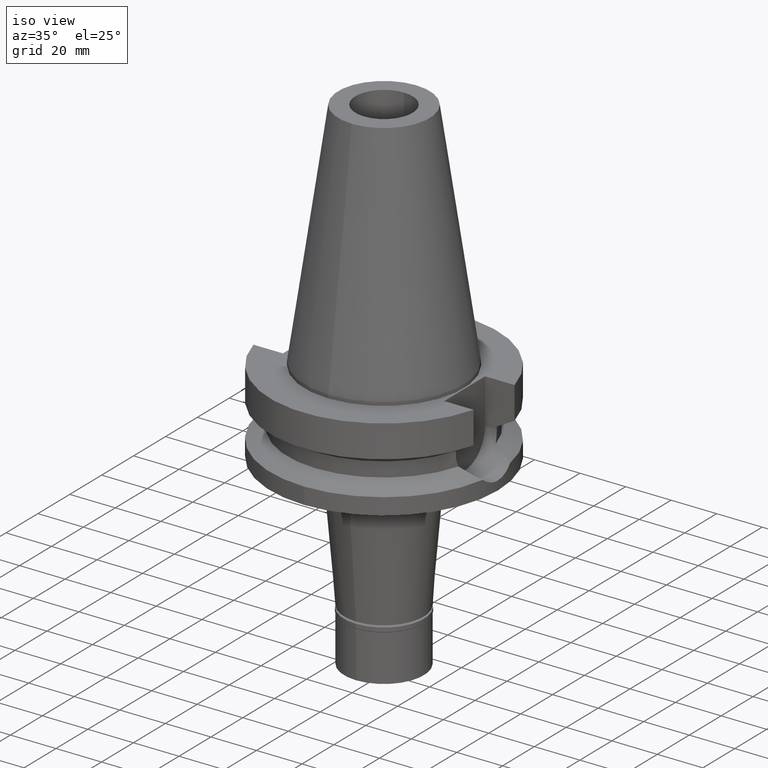
[diagram: clean part render]
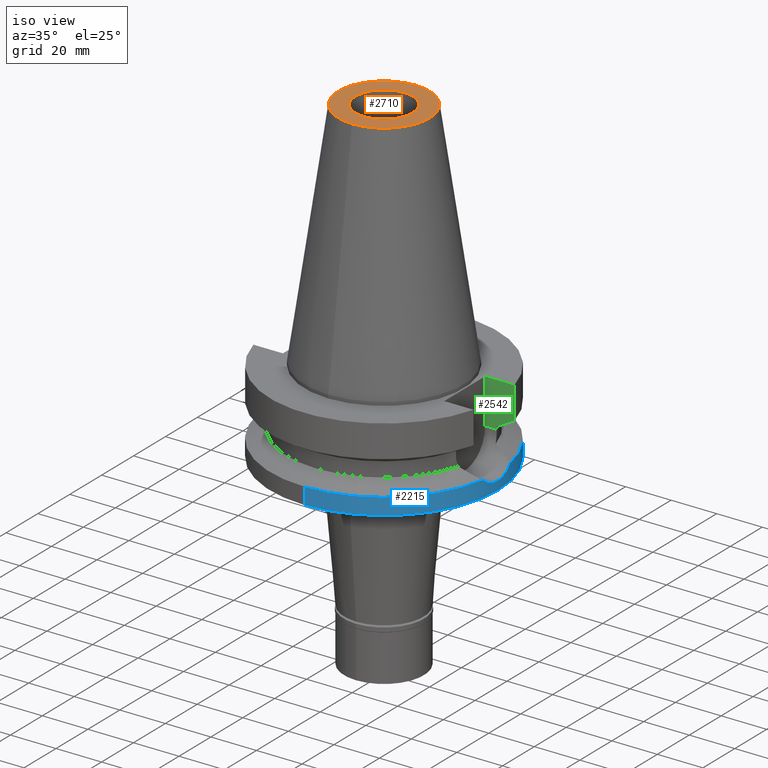
[diagram: same view with three faces highlighted in distinct colors, each labeled with its STEP entity id]
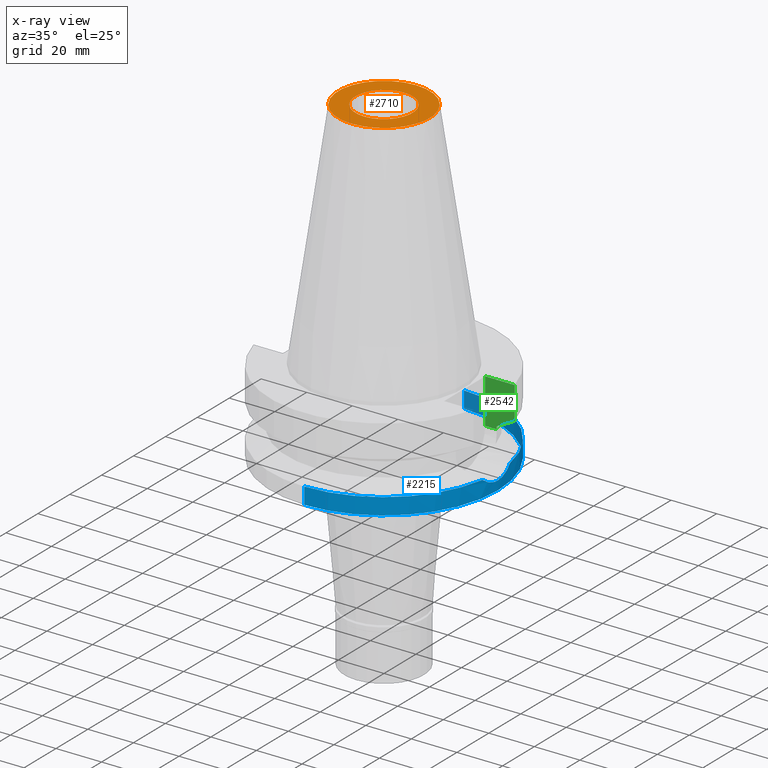
[diagram: x-ray of the same camera — body ghosted, the three highlighted faces saturated]
A machine part, iso view with three faces highlighted in distinct colors.
The next image is the same camera in x-ray (body ghosted, the three faces saturated) — at least one of them is partly hidden behind the body in this view.
Their STEP definitions:

[orange] entity #2710 — the highlighted planar face has unit normal (0, 0, -1).
#77 = VERTEX_POINT ( 'NONE', #3019 ) ;
#270 = FACE_BOUND ( 'NONE', #983, .T. ) ;
#286 = CARTESIAN_POINT ( 'NONE',  ( 0.0000000000000000000, -20.07942971896000017, 101.7999999999999972 ) ) ;
#373 = AXIS2_PLACEMENT_3D ( 'NONE', #448, #2662, #2400 ) ;
#448 = CARTESIAN_POINT ( 'NONE',  ( 0.0000000000000000000, 2.603048003927999965E-14, 101.7999999999999972 ) ) ;
#477 = DIRECTION ( 'NONE',  ( 0.0000000000000000000, 1.000000000000000000, 0.0000000000000000000 ) ) ;
#525 = FACE_OUTER_BOUND ( 'NONE', #2743, .T. ) ;
#698 = DIRECTION ( 'NONE',  ( 0.0000000000000000000, 0.0000000000000000000, -1.000000000000000000 ) ) ;
#783 = CIRCLE ( 'NONE', #2579, 12.50000000000000000 ) ;
#830 = AXIS2_PLACEMENT_3D ( 'NONE', #1964, #2432, #477 ) ;
#983 = EDGE_LOOP ( 'NONE', ( #1874, #3171 ) ) ;
#1028 = VERTEX_POINT ( 'NONE', #1634 ) ;
#1173 = VERTEX_POINT ( 'NONE', #2836 ) ;
#1240 = DIRECTION ( 'NONE',  ( 0.0000000000000000000, -1.000000000000000000, 0.0000000000000000000 ) ) ;
#1257 = CARTESIAN_POINT ( 'NONE',  ( 0.0000000000000000000, 2.471337240678999545E-14, 101.7999999999999972 ) ) ;
#1316 = DIRECTION ( 'NONE',  ( 0.0000000000000000000, -1.000000000000000000, 0.0000000000000000000 ) ) ;
#1320 = EDGE_CURVE ( 'NONE', #1028, #77, #1748, .T. ) ;
#1369 = DIRECTION ( 'NONE',  ( 0.0000000000000000000, 0.0000000000000000000, 1.000000000000000000 ) ) ;
#1510 = EDGE_CURVE ( 'NONE', #1173, #2652, #2874, .T. ) ;
#1634 = CARTESIAN_POINT ( 'NONE',  ( 0.0000000000000000000, 12.50000000000000000, 101.7999999999999972 ) ) ;
#1748 = CIRCLE ( 'NONE', #373, 12.50000000000000000 ) ;
#1791 = CARTESIAN_POINT ( 'NONE',  ( 0.0000000000000000000, 2.603048003927999965E-14, 101.7999999999999972 ) ) ;
#1874 = ORIENTED_EDGE ( 'NONE', *, *, #1320, .F. ) ;
#1964 = CARTESIAN_POINT ( 'NONE',  ( 0.0000000000000000000, 1.847992019912999597E-14, 101.7999999999999972 ) ) ;
#2147 = EDGE_CURVE ( 'NONE', #77, #1028, #783, .T. ) ;
#2395 = DIRECTION ( 'NONE',  ( 0.0000000000000000000, -1.000000000000000000, 0.0000000000000000000 ) ) ;
#2400 = DIRECTION ( 'NONE',  ( 0.0000000000000000000, 1.000000000000000000, 0.0000000000000000000 ) ) ;
#2432 = DIRECTION ( 'NONE',  ( 0.0000000000000000000, 0.0000000000000000000, -1.000000000000000000 ) ) ;
#2458 = AXIS2_PLACEMENT_3D ( 'NONE', #1257, #2459, #1240 ) ;
#2459 = DIRECTION ( 'NONE',  ( 0.0000000000000000000, 0.0000000000000000000, -1.000000000000000000 ) ) ;
#2500 = AXIS2_PLACEMENT_3D ( 'NONE', #3156, #698, #2395 ) ;
#2579 = AXIS2_PLACEMENT_3D ( 'NONE', #1791, #1369, #1316 ) ;
#2652 = VERTEX_POINT ( 'NONE', #286 ) ;
#2662 = DIRECTION ( 'NONE',  ( 0.0000000000000000000, 0.0000000000000000000, 1.000000000000000000 ) ) ;
#2710 = ADVANCED_FACE ( 'NONE', ( #525, #270 ), #2975, .F. ) ;
#2743 = EDGE_LOOP ( 'NONE', ( #2886, #2810 ) ) ;
#2810 = ORIENTED_EDGE ( 'NONE', *, *, #3121, .F. ) ;
#2836 = CARTESIAN_POINT ( 'NONE',  ( 0.0000000000000000000, 20.07942971896000017, 101.7999999999999972 ) ) ;
#2874 = CIRCLE ( 'NONE', #830, 20.07942971896000017 ) ;
#2886 = ORIENTED_EDGE ( 'NONE', *, *, #1510, .F. ) ;
#2975 = PLANE ( 'NONE',  #2458 ) ;
#3019 = CARTESIAN_POINT ( 'NONE',  ( 0.0000000000000000000, -12.50000000000000000, 101.7999999999999972 ) ) ;
#3080 = CIRCLE ( 'NONE', #2500, 20.07942971896000017 ) ;
#3121 = EDGE_CURVE ( 'NONE', #2652, #1173, #3080, .T. ) ;
#3156 = CARTESIAN_POINT ( 'NONE',  ( 0.0000000000000000000, 1.847992019912999597E-14, 101.7999999999999972 ) ) ;
#3171 = ORIENTED_EDGE ( 'NONE', *, *, #2147, .F. ) ;

[blue] entity #2215 — the highlighted cylindrical surface (partial cylindrical patch) has radius 50 mm, axis along (0, 0, -1).
#33 = EDGE_CURVE ( 'NONE', #1260, #2780, #362, .T. ) ;
#101 = VERTEX_POINT ( 'NONE', #3060 ) ;
#109 = LINE ( 'NONE', #3035, #3038 ) ;
#115 = CARTESIAN_POINT ( 'NONE',  ( 49.62581592558765919, -6.100685968510558332, -32.46624463467075117 ) ) ;
#160 = VERTEX_POINT ( 'NONE', #1763 ) ;
#172 = DIRECTION ( 'NONE',  ( 0.0000000000000000000, 0.0000000000000000000, 1.000000000000000000 ) ) ;
#285 = DIRECTION ( 'NONE',  ( 0.0000000000000000000, 1.000000000000000000, 0.0000000000000000000 ) ) ;
#312 = CARTESIAN_POINT ( 'NONE',  ( 49.26250064874000145, -8.556052234130000045, -30.73730776426999967 ) ) ;
#319 = VERTEX_POINT ( 'NONE', #665 ) ;
#353 = CARTESIAN_POINT ( 'NONE',  ( 49.66531744485688193, -5.772426570830009318, -32.63572039579059236 ) ) ;
#362 = CIRCLE ( 'NONE', #2456, 50.00000000000000000 ) ;
#390 = CARTESIAN_POINT ( 'NONE',  ( 49.99999999999998579, 0.7410986931653621435, -33.99999999999999289 ) ) ;
#391 = DIRECTION ( 'NONE',  ( 0.0000000000000000000, 0.0000000000000000000, -1.000000000000000000 ) ) ;
#403 = CARTESIAN_POINT ( 'NONE',  ( 49.90869784560958777, 3.032821729578789149, -33.64331055714312413 ) ) ;
#414 = CARTESIAN_POINT ( 'NONE',  ( 49.76777238604586273, -4.813761785137895544, -33.06473290387967978 ) ) ;
#454 = LINE ( 'NONE', #1431, #2256 ) ;
#561 = CYLINDRICAL_SURFACE ( 'NONE', #1067, 50.00000000000000000 ) ;
#632 = CARTESIAN_POINT ( 'NONE',  ( 49.38718636592512468, 7.838159208740359318, -31.37798086820917121 ) ) ;
#637 = CIRCLE ( 'NONE', #2055, 50.00000000000000000 ) ;
#660 = CARTESIAN_POINT ( 'NONE',  ( 49.78563763145313459, -4.625094769529587424, -33.13881278610184467 ) ) ;
#661 = CARTESIAN_POINT ( 'NONE',  ( 49.26250064874000145, 8.556052234130000045, -30.73730776426999967 ) ) ;
#665 = CARTESIAN_POINT ( 'NONE',  ( 50.00000000000000000, 1.760766551643999777E-14, -34.00000000000000000 ) ) ;
#670 = CARTESIAN_POINT ( 'NONE',  ( 49.26250064874000145, -8.556052234130000045, -30.73730776426999967 ) ) ;
#813 = EDGE_CURVE ( 'NONE', #1260, #101, #454, .T. ) ;
#814 = ORIENTED_EDGE ( 'NONE', *, *, #2314, .T. ) ;
#839 = CARTESIAN_POINT ( 'NONE',  ( 49.80628862109801958, 4.396903292072233072, -33.22452887385981057 ) ) ;
#842 = CARTESIAN_POINT ( 'NONE',  ( 49.78972506718614000, -4.580790312888682436, -33.15578537448686802 ) ) ;
#859 = CARTESIAN_POINT ( 'NONE',  ( 49.77980747409431928, -4.687522623499645213, -33.11462325492516356 ) ) ;
#862 = CARTESIAN_POINT ( 'NONE',  ( 0.0000000000000000000, 50.00000000000000000, -30.73730776426999967 ) ) ;
#871 = CARTESIAN_POINT ( 'NONE',  ( 49.93043645379778184, 2.648747844653752015, -33.73005492424379526 ) ) ;
#1008 = EDGE_CURVE ( 'NONE', #2705, #319, #3119, .T. ) ;
#1067 = AXIS2_PLACEMENT_3D ( 'NONE', #2587, #391, #2344 ) ;
#1072 = CARTESIAN_POINT ( 'NONE',  ( 49.86956835087084983, 3.608176225634720069, -33.48463187147966380 ) ) ;
#1083 = EDGE_LOOP ( 'NONE', ( #2681, #814, #2638, #1437, #1342, #2727, #1815 ) ) ;
#1093 = CARTESIAN_POINT ( 'NONE',  ( 49.79239523034726744, 4.551608024969013400, -33.16687999445179713 ) ) ;
#1096 = CARTESIAN_POINT ( 'NONE',  ( 50.00000000000000000, -0.7410781193269454503, -34.00000000000000000 ) ) ;
#1111 = CARTESIAN_POINT ( 'NONE',  ( 49.98260911344944191, 1.500697552211967878, -33.93573404318195230 ) ) ;
#1115 = DIRECTION ( 'NONE',  ( 0.0000000000000000000, -1.000000000000000000, 0.0000000000000000000 ) ) ;
#1124 = CARTESIAN_POINT ( 'NONE',  ( 49.84837320788735582, 3.895659733650731482, -33.39815592397496147 ) ) ;
#1136 = CARTESIAN_POINT ( 'NONE',  ( 49.79509875744958691, 4.521875388850352451, -33.17810981394697478 ) ) ;
#1148 = CARTESIAN_POINT ( 'NONE',  ( 49.71771672571096445, -5.301668118376524852, -32.85661610133627875 ) ) ;
#1152 = EDGE_CURVE ( 'NONE', #160, #101, #637, .T. ) ;
#1260 = VERTEX_POINT ( 'NONE', #862 ) ;
#1270 = DIRECTION ( 'NONE',  ( 0.0000000000000000000, 0.0000000000000000000, -1.000000000000000000 ) ) ;
#1271 = DIRECTION ( 'NONE',  ( 0.0000000000000000000, 0.0000000000000000000, -1.000000000000000000 ) ) ;
#1342 = ORIENTED_EDGE ( 'NONE', *, *, #33, .T. ) ;
#1368 = CARTESIAN_POINT ( 'NONE',  ( 49.82079234874859708, 4.230048365321056103, -33.28454251582685686 ) ) ;
#1394 = CARTESIAN_POINT ( 'NONE',  ( 49.79079948641095399, -4.569077029246932042, -33.16024877062141485 ) ) ;
#1431 = CARTESIAN_POINT ( 'NONE',  ( 0.0000000000000000000, 50.00000000000000000, -30.73730776426999967 ) ) ;
#1437 = ORIENTED_EDGE ( 'NONE', *, *, #813, .F. ) ;
#1471 = CARTESIAN_POINT ( 'NONE',  ( 49.26250064874000145, 8.556052234130000045, -30.73730776426999967 ) ) ;
#1491 = CIRCLE ( 'NONE', #2153, 50.00000000000000000 ) ;
#1503 = CARTESIAN_POINT ( 'NONE',  ( 0.0000000000000000000, 0.0000000000000000000, -30.73730776426999967 ) ) ;
#1583 = CARTESIAN_POINT ( 'NONE',  ( 0.0000000000000000000, 2.603048003927999965E-14, -38.00000000000000000 ) ) ;
#1646 = CARTESIAN_POINT ( 'NONE',  ( 49.98261190536402410, -1.500633726381632727, -33.93573757111163047 ) ) ;
#1656 = B_SPLINE_CURVE_WITH_KNOTS ( 'NONE', 3,
 ( #3072, #390, #1111, #871, #403, #1072, #1124, #1368, #839, #2306, #1136, #1829, #1093, #2115, #3101, #1845, #2855, #632, #661 ),
 .UNSPECIFIED., .F., .F.,
 ( 4, 2, 2, 1, 1, 1, 1, 1, 2, 2, 2, 4 ),
 ( 0.0000000000000000000, 0.2499999999999970024, 0.3749999999999957256, 0.4374999999999953926, 0.4687499999999956146, 0.4843749999999955591, 0.4921874999999956146, 0.4960937499999956146, 0.4980468749999952816, 0.4999999999999950040, 0.7499999999999974465, 1.000000000000000000 ),
 .UNSPECIFIED. ) ;
#1664 = CARTESIAN_POINT ( 'NONE',  ( 0.0000000000000000000, -50.00000000000000000, -30.73730776426999967 ) ) ;
#1763 = CARTESIAN_POINT ( 'NONE',  ( 0.0000000000000000000, -50.00000000000000000, -38.00000000000000000 ) ) ;
#1815 = ORIENTED_EDGE ( 'NONE', *, *, #1008, .F. ) ;
#1829 = CARTESIAN_POINT ( 'NONE',  ( 49.79347791493478326, 4.539715724462467072, -33.17137768956146715 ) ) ;
#1845 = CARTESIAN_POINT ( 'NONE',  ( 49.66986618812324394, 5.762088535891665586, -32.66233170657520191 ) ) ;
#1870 = CARTESIAN_POINT ( 'NONE',  ( 49.75681412772289036, -4.924294299564520472, -33.01930483963883489 ) ) ;
#1884 = CARTESIAN_POINT ( 'NONE',  ( 49.73404098632069292, -5.148335372520767450, -32.92469446703565694 ) ) ;
#2055 = AXIS2_PLACEMENT_3D ( 'NONE', #1583, #172, #1115 ) ;
#2115 = CARTESIAN_POINT ( 'NONE',  ( 49.79171236025037928, 4.559090087512880807, -33.16404260905409274 ) ) ;
#2129 = CARTESIAN_POINT ( 'NONE',  ( 49.38719034094327043, -7.838136322069489736, -31.37800129308299901 ) ) ;
#2153 = AXIS2_PLACEMENT_3D ( 'NONE', #2721, #1271, #3011 ) ;
#2215 = ADVANCED_FACE ( 'NONE', ( #2831 ), #561, .T. ) ;
#2256 = VECTOR ( 'NONE', #3151, 1000.000000000000000 ) ;
#2306 = CARTESIAN_POINT ( 'NONE',  ( 49.79885843275246060, 4.480234919337671151, -33.19371722164432015 ) ) ;
#2308 = EDGE_CURVE ( 'NONE', #319, #2780, #1656, .T. ) ;
#2311 = CARTESIAN_POINT ( 'NONE',  ( 49.91305952682015601, -3.031241889234600251, -33.66153705293795895 ) ) ;
#2314 = EDGE_CURVE ( 'NONE', #2464, #160, #109, .T. ) ;
#2343 = DIRECTION ( 'NONE',  ( 0.0000000000000000000, -2.054527022025999694E-14, -1.000000000000000000 ) ) ;
#2344 = DIRECTION ( 'NONE',  ( 0.0000000000000000000, -1.000000000000000000, 0.0000000000000000000 ) ) ;
#2372 = CARTESIAN_POINT ( 'NONE',  ( 49.79053563887244849, -4.571955316163117899, -33.15915263188479400 ) ) ;
#2456 = AXIS2_PLACEMENT_3D ( 'NONE', #1503, #1270, #285 ) ;
#2464 = VERTEX_POINT ( 'NONE', #1664 ) ;
#2587 = CARTESIAN_POINT ( 'NONE',  ( 0.0000000000000000000, 2.603048003927999965E-14, 112.5550000000000068 ) ) ;
#2629 = CARTESIAN_POINT ( 'NONE',  ( 50.00000000000000000, 1.760766551643999777E-14, -34.00000000000000000 ) ) ;
#2638 = ORIENTED_EDGE ( 'NONE', *, *, #1152, .T. ) ;
#2654 = EDGE_CURVE ( 'NONE', #2705, #2464, #1491, .T. ) ;
#2681 = ORIENTED_EDGE ( 'NONE', *, *, #2654, .T. ) ;
#2705 = VERTEX_POINT ( 'NONE', #312 ) ;
#2721 = CARTESIAN_POINT ( 'NONE',  ( 0.0000000000000000000, 0.0000000000000000000, -30.73730776426999967 ) ) ;
#2727 = ORIENTED_EDGE ( 'NONE', *, *, #2308, .F. ) ;
#2780 = VERTEX_POINT ( 'NONE', #1471 ) ;
#2801 = CARTESIAN_POINT ( 'NONE',  ( 49.86089524291222830, -3.802281370672397909, -33.45152773122033096 ) ) ;
#2831 = FACE_OUTER_BOUND ( 'NONE', #1083, .T. ) ;
#2855 = CARTESIAN_POINT ( 'NONE',  ( 49.49359661723879356, 7.117097516944030033, -31.87764506086865879 ) ) ;
#2867 = CARTESIAN_POINT ( 'NONE',  ( 49.78850586346616325, -4.594055356252760625, -33.15072133026734491 ) ) ;
#3011 = DIRECTION ( 'NONE',  ( 0.9852500129747439050, -0.1711210446826074982, 0.0000000000000000000 ) ) ;
#3035 = CARTESIAN_POINT ( 'NONE',  ( 0.0000000000000000000, -50.00000000000000000, -30.73730776426999967 ) ) ;
#3038 = VECTOR ( 'NONE', #2343, 1000.000000000000000 ) ;
#3059 = CARTESIAN_POINT ( 'NONE',  ( 49.49360537168058727, -7.117033888706741251, -31.87769203041288790 ) ) ;
#3060 = CARTESIAN_POINT ( 'NONE',  ( 0.0000000000000000000, 50.00000000000000000, -38.00000000000000000 ) ) ;
#3072 = CARTESIAN_POINT ( 'NONE',  ( 50.00000000000000000, 1.760766551643999777E-14, -34.00000000000000000 ) ) ;
#3101 = CARTESIAN_POINT ( 'NONE',  ( 49.73972550769401835, 5.127766567896235195, -32.94800242006812852 ) ) ;
#3119 = B_SPLINE_CURVE_WITH_KNOTS ( 'NONE', 3,
 ( #670, #2129, #3059, #115, #353, #1148, #1884, #1870, #414, #859, #660, #2867, #842, #2372, #1394, #2801, #2311, #1646, #1096, #2629 ),
 .UNSPECIFIED., .F., .F.,
 ( 4, 2, 2, 2, 1, 1, 1, 1, 2, 2, 2, 4 ),
 ( 0.0000000000000000000, 0.2500000000000127121, 0.3750000000000195399, 0.4375000000000222600, 0.4687500000000233147, 0.4843750000000240363, 0.4921875000000239808, 0.4960937500000238143, 0.4980468750000242029, 0.5000000000000245359, 0.7500000000000123235, 1.000000000000000000 ),
 .UNSPECIFIED. ) ;
#3151 = DIRECTION ( 'NONE',  ( 0.0000000000000000000, 2.152361642122000014E-14, -1.000000000000000000 ) ) ;

[green] entity #2542 — the highlighted planar face has unit normal (0, 1, 0).
#38 = ORIENTED_EDGE ( 'NONE', *, *, #1550, .F. ) ;
#72 = DIRECTION ( 'NONE',  ( 1.000000000000000000, 0.0000000000000000000, 0.0000000000000000000 ) ) ;
#213 = DIRECTION ( 'NONE',  ( 9.441367588631237423E-07, -2.976482343459074292E-06, 0.9999999999951246776 ) ) ;
#217 = VECTOR ( 'NONE', #1636, 1000.000000000000114 ) ;
#227 = CARTESIAN_POINT ( 'NONE',  ( 40.51083297732999711, 12.84999655574999800, -19.99284568687000174 ) ) ;
#230 = CARTESIAN_POINT ( 'NONE',  ( 48.32057015392000210, 12.84999999999999964, -1.500000000000000000 ) ) ;
#475 = ORIENTED_EDGE ( 'NONE', *, *, #2768, .T. ) ;
#507 = DIRECTION ( 'NONE',  ( 0.0000000000000000000, 0.0000000000000000000, -1.000000000000000000 ) ) ;
#534 = VERTEX_POINT ( 'NONE', #227 ) ;
#541 = CARTESIAN_POINT ( 'NONE',  ( 35.39999999999999858, 12.84999999999999964, -1.500000000000000000 ) ) ;
#577 = CARTESIAN_POINT ( 'NONE',  ( 35.39999999999999858, 12.84999999999999964, -1.500000000000000000 ) ) ;
#581 = VERTEX_POINT ( 'NONE', #230 ) ;
#744 = EDGE_CURVE ( 'NONE', #2674, #534, #2164, .T. ) ;
#748 = EDGE_CURVE ( 'NONE', #922, #2674, #2937, .T. ) ;
#752 = LINE ( 'NONE', #541, #2974 ) ;
#922 = VERTEX_POINT ( 'NONE', #1264 ) ;
#960 = FACE_OUTER_BOUND ( 'NONE', #2703, .T. ) ;
#1063 = VERTEX_POINT ( 'NONE', #1372 ) ;
#1178 = VECTOR ( 'NONE', #2452, 1000.000000000000000 ) ;
#1203 = CARTESIAN_POINT ( 'NONE',  ( 35.39999999999999858, 12.84999999999999964, -21.14999999999999858 ) ) ;
#1264 = CARTESIAN_POINT ( 'NONE',  ( 35.39999999999999858, 12.84999999999999964, -21.14999999999999858 ) ) ;
#1266 = ORIENTED_EDGE ( 'NONE', *, *, #744, .T. ) ;
#1287 = EDGE_CURVE ( 'NONE', #2429, #581, #2141, .T. ) ;
#1372 = CARTESIAN_POINT ( 'NONE',  ( 35.39999999999999858, 12.84999999999999964, -1.500000000000000000 ) ) ;
#1449 = CARTESIAN_POINT ( 'NONE',  ( 40.51083188481999997, 12.84999999999999964, -21.14999999999999858 ) ) ;
#1475 = ORIENTED_EDGE ( 'NONE', *, *, #1287, .T. ) ;
#1523 = CARTESIAN_POINT ( 'NONE',  ( 40.51083188481999997, 12.84999999999999964, -21.14999999999999858 ) ) ;
#1550 = EDGE_CURVE ( 'NONE', #1063, #581, #2302, .T. ) ;
#1588 = CARTESIAN_POINT ( 'NONE',  ( 45.51179877536964824, 12.85000770605298293, -17.22986719327604632 ) ) ;
#1636 = DIRECTION ( 'NONE',  ( 7.239195591135710526E-08, -2.722193254882891079E-07, 0.9999999999999603650 ) ) ;
#1647 = PLANE ( 'NONE',  #1689 ) ;
#1689 = AXIS2_PLACEMENT_3D ( 'NONE', #2155, #3130, #3161 ) ;
#1785 = CARTESIAN_POINT ( 'NONE',  ( 48.32056912865999720, 12.85000385534999978, -15.66265769983000311 ) ) ;
#1840 = CARTESIAN_POINT ( 'NONE',  ( 42.90862464316793279, 12.84999310449187071, -18.67324794692740042 ) ) ;
#2141 = LINE ( 'NONE', #2157, #217 ) ;
#2155 = CARTESIAN_POINT ( 'NONE',  ( 35.39999999999999858, 12.84999999999999964, -21.14999999999999858 ) ) ;
#2157 = CARTESIAN_POINT ( 'NONE',  ( 48.32056912865999720, 12.85000385534999978, -15.66265769983000311 ) ) ;
#2164 = LINE ( 'NONE', #1449, #3093 ) ;
#2188 = B_SPLINE_CURVE_WITH_KNOTS ( 'NONE', 3,
 ( #1785, #1588, #1840, #2301 ),
 .UNSPECIFIED., .F., .F.,
 ( 4, 4 ),
 ( 0.0000000000000000000, 1.000000000000000000 ),
 .UNSPECIFIED. ) ;
#2301 = CARTESIAN_POINT ( 'NONE',  ( 40.51083297732999711, 12.84999655574999800, -19.99284568687000174 ) ) ;
#2302 = LINE ( 'NONE', #577, #2774 ) ;
#2429 = VERTEX_POINT ( 'NONE', #2630 ) ;
#2452 = DIRECTION ( 'NONE',  ( 1.000000000000000000, -3.336643826789999529E-14, 0.0000000000000000000 ) ) ;
#2542 = ADVANCED_FACE ( 'NONE', ( #960 ), #1647, .F. ) ;
#2630 = CARTESIAN_POINT ( 'NONE',  ( 48.32056912865999720, 12.85000385534999978, -15.66265769983000311 ) ) ;
#2660 = ORIENTED_EDGE ( 'NONE', *, *, #2828, .F. ) ;
#2674 = VERTEX_POINT ( 'NONE', #1523 ) ;
#2703 = EDGE_LOOP ( 'NONE', ( #2660, #1475, #38, #475, #3010, #1266 ) ) ;
#2768 = EDGE_CURVE ( 'NONE', #1063, #922, #752, .T. ) ;
#2774 = VECTOR ( 'NONE', #72, 1000.000000000000000 ) ;
#2828 = EDGE_CURVE ( 'NONE', #2429, #534, #2188, .T. ) ;
#2937 = LINE ( 'NONE', #1203, #1178 ) ;
#2974 = VECTOR ( 'NONE', #507, 1000.000000000000000 ) ;
#3010 = ORIENTED_EDGE ( 'NONE', *, *, #748, .T. ) ;
#3093 = VECTOR ( 'NONE', #213, 999.9999999999998863 ) ;
#3130 = DIRECTION ( 'NONE',  ( -0.0000000000000000000, 1.000000000000000000, 0.0000000000000000000 ) ) ;
#3161 = DIRECTION ( 'NONE',  ( 1.000000000000000000, 0.0000000000000000000, 0.0000000000000000000 ) ) ;